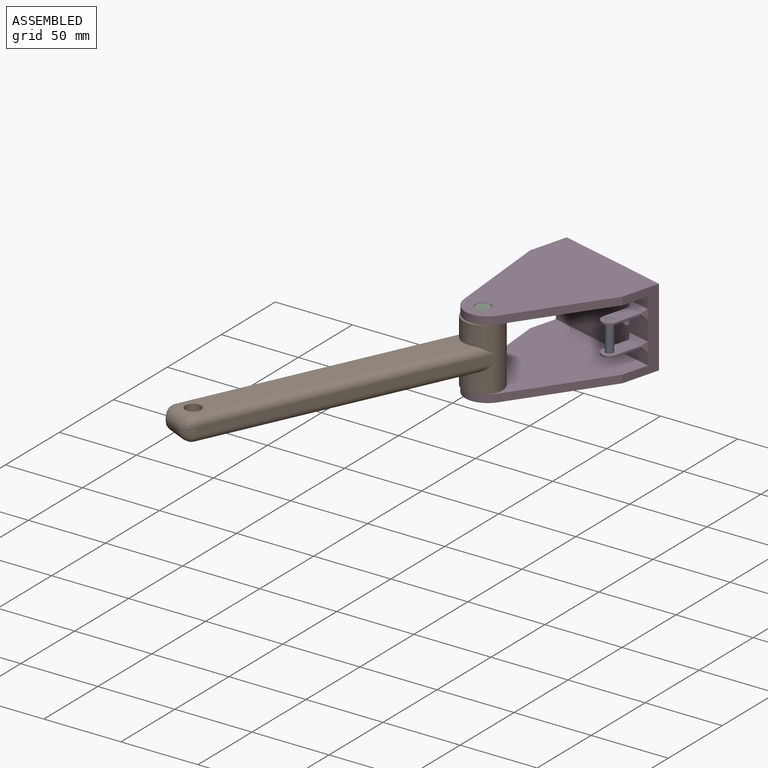
[diagram: assembled view]
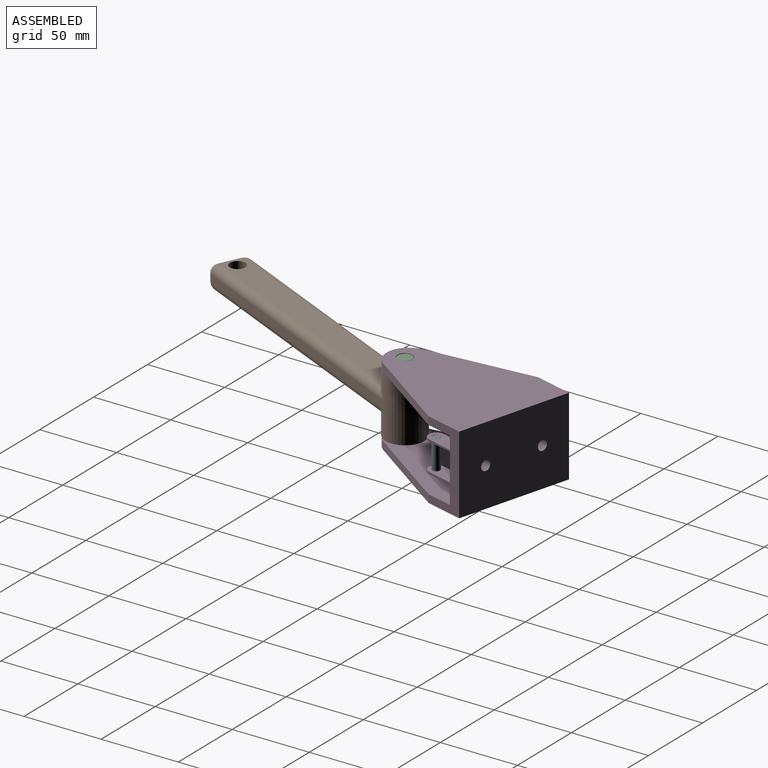
[diagram: assembled view, second angle]
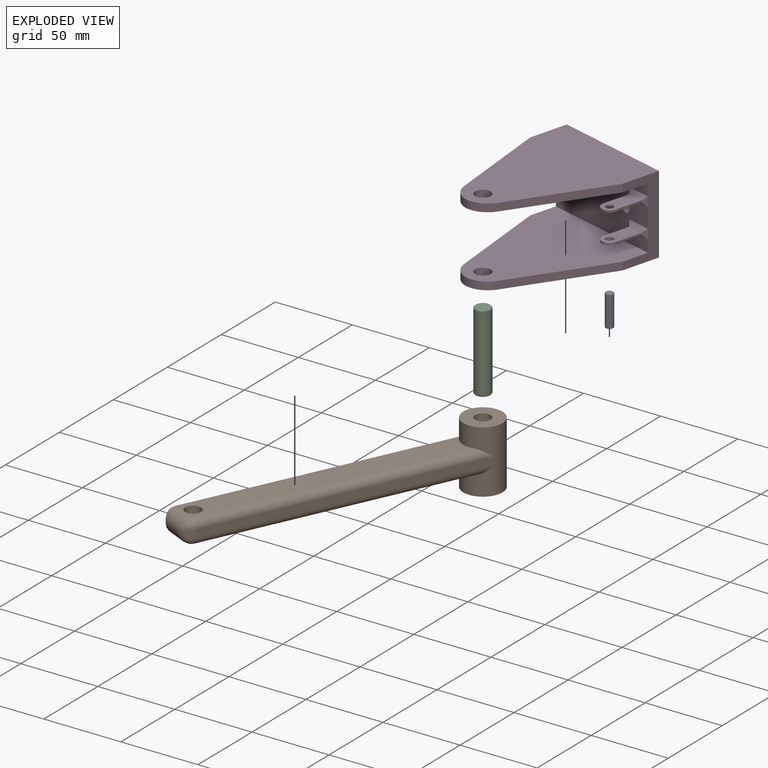
[diagram: exploded view]
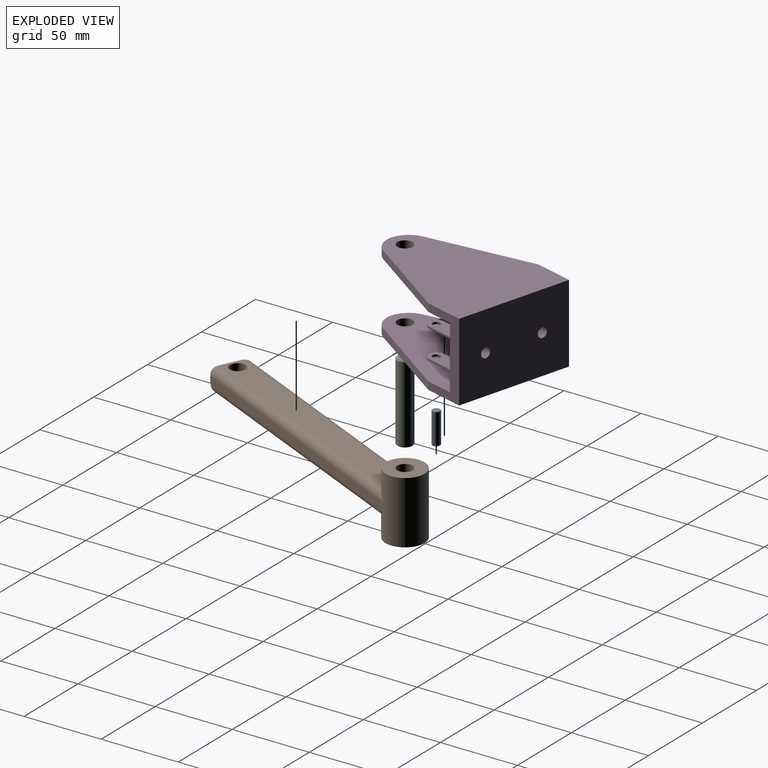
[diagram: exploded view, second angle]
ASSEMBLY  parts=4 mates=3
PART A: 5 faces, bbox 5.1x20.3x5.1 mm
  f0: cylinder r=2.54mm len=19.81mm, axis (0,1,0), area 316.2mm2, adj f3,f4
  f1: plane 4.57x4.57mm, normal (0,-1,0), area 16.4mm2, adj f4
  f2: plane 4.57x4.57mm, normal (0,1,0), area 16.4mm2, adj f3
  f3: cone r=2.54mm half-angle=45deg, axis (0,-1,0), area 5.4mm2, adj f0,f2
  f4: cone r=2.29mm half-angle=45deg, axis (0,1,0), area 5.4mm2, adj f0,f1
PART B: 20 faces, bbox 40.6x25.4x203.2 mm
  f0: plane 182.88x5.08mm, normal (0,-1,0), area 929mm2, adj f5,f9,f10,f13
  f1: plane 25.4x25.4mm, normal (1,0,0), area 425.6mm2, adj f4,f5
  f2: plane 25.4x25.4mm, normal (-1,0,0), area 425.6mm2, adj f4,f5
  f3: plane 182.88x5.08mm, normal (0,1,0), area 929mm2, adj f5,f8,f11,f16
  f4: cylinder r=5.08mm len=40.64mm, axis (1,0,0), area 1297.2mm2, adj f1,f2
  f5: cylinder r=12.7mm len=40.64mm, axis (-1,0,0), area 2726.1mm2, adj f0,f1,f2,f3,f6,f7,f8,f9
  f6: plane 172.72x15.24mm, normal (-1,0,0), area 2524.8mm2, adj f5,f10,f11,f12,f18
  f7: plane 172.72x15.24mm, normal (1,0,0), area 2524.8mm2, adj f5,f8,f9,f12,f18
  f8: cylinder r=5.08mm len=182.88mm, axis (0,0,-1), area 1414.1mm2, adj f3,f5,f7,f19
  f9: cylinder r=5.08mm len=182.88mm, axis (0,0,1), area 1414.1mm2, adj f0,f5,f7,f17
  f10: cylinder r=5.08mm len=182.88mm, axis (0,0,-1), area 1414.1mm2, adj f0,f5,f6,f14
  f11: cylinder r=5.08mm len=182.88mm, axis (0,0,1), area 1414.1mm2, adj f3,f5,f6,f15
  f12: cylinder r=5.08mm len=15.24mm, axis (1,0,0), area 486.4mm2, adj f6,f7
  f13: cylinder r=7.62mm len=7.62mm, axis (1,0,0), area 38.7mm2, adj f0,f14,f17
  f14: bspline ~8.04x7.62mm, area 62.9mm2, adj f10,f13,f18
  f15: bspline ~8.04x7.62mm, area 62.9mm2, adj f11,f16,f18
  f16: cylinder r=7.62mm len=7.62mm, axis (-1,0,0), area 38.7mm2, adj f3,f15,f19
  f17: bspline ~9.26x7.62mm, area 62.9mm2, adj f9,f13,f18
  f18: cylinder r=7.62mm len=15.24mm, axis (0,-1,0), area 320.6mm2, adj f6,f7,f14,f15,f17,f19
  f19: bspline ~8.04x7.62mm, area 62.9mm2, adj f8,f16,f18
PART C: 5 faces, bbox 10.2x50.8x10.2 mm
  f0: cylinder r=5.08mm len=49.78mm, axis (0,1,0), area 1589mm2, adj f3,f4
  f1: plane 9.14x9.14mm, normal (0,-1,0), area 65.7mm2, adj f4
  f2: plane 9.14x9.14mm, normal (0,1,0), area 65.7mm2, adj f3
  f3: cone r=5.08mm half-angle=45deg, axis (0,-1,0), area 21.8mm2, adj f0,f2
  f4: cone r=4.57mm half-angle=45deg, axis (0,1,0), area 21.8mm2, adj f0,f1
PART D: 40 faces, bbox 76.2x101.6x50.8 mm
  f0: plane 17.78x1.27mm, normal (1,0,0), area 22.6mm2, adj f25,f27,f29,f30
  f1: plane 17.78x1.27mm, normal (-1,0,0), area 22.6mm2, adj f23,f26,f28,f37
  f2: plane 101.59x76.2mm, normal (0,0,1), area 5490.6mm2, adj f4,f7,f8,f12,f13,f14,f15,f19
  f3: plane 101.59x76.2mm, normal (0,0,-1), area 5490.6mm2, adj f4,f7,f8,f10,f11,f16,f17,f18
  f4: plane 50.8x25.4mm, normal (1,0,0), area 567.7mm2, adj f2,f3,f5,f6,f8,f9,f11,f13
  f5: plane 93.97x76.2mm, normal (0,0,-1), area 4909.9mm2, adj f4,f7,f9,f12,f13,f14,f15,f19
  f6: plane 93.97x76.2mm, normal (0,0,1), area 4909.9mm2, adj f4,f7,f9,f10,f11,f16,f17,f18
  f7: plane 50.8x25.4mm, normal (-1,0,0), area 567.7mm2, adj f2,f3,f5,f6,f8,f9,f10,f12
  f8: plane 76.2x50.8mm, normal (0,1,0), area 3807.6mm2, adj f2,f3,f4,f7,f20,f21
  f9: plane 76.2x40.64mm, normal (0,-1,0), area 2839.9mm2, adj f4,f5,f6,f7,f20,f21,f31,f32
  f10: plane 66.21x24.28mm, normal (-0.94,-0.34,0), area 358.2mm2, adj f3,f6,f7,f17
  f11: plane 66.21x24.28mm, normal (0.94,-0.34,0), area 358.2mm2, adj f3,f4,f6,f16
  f12: plane 66.21x24.28mm, normal (-0.94,-0.34,0), area 358.2mm2, adj f2,f5,f7,f14
  f13: plane 66.21x24.28mm, normal (0.94,-0.34,0), area 358.2mm2, adj f2,f4,f5,f15
  f14: cylinder r=15.24mm len=13.82mm, axis (0,0,-1), area 91.9mm2, adj f2,f5,f12,f15
  f15: cylinder r=15.24mm len=13.82mm, axis (0,0,1), area 91.9mm2, adj f2,f5,f13,f14
  f16: cylinder r=15.24mm len=13.82mm, axis (0,0,1), area 91.9mm2, adj f3,f6,f11,f17
  f17: cylinder r=15.24mm len=13.82mm, axis (0,0,-1), area 91.9mm2, adj f3,f6,f10,f16
  f18: cylinder r=5.08mm len=10.16mm, axis (0,0,1), area 162.1mm2, adj f3,f6
  f19: cylinder r=5.08mm len=10.16mm, axis (0,0,1), area 162.1mm2, adj f2,f5
  f20: cylinder r=3.17mm len=7.62mm, axis (0,1,0), area 152mm2, adj f8,f9
  f21: cylinder r=3.17mm len=7.62mm, axis (0,1,0), area 152mm2, adj f8,f9
  f22: plane 17.78x1.27mm, normal (1,0,0), area 22.6mm2, adj f23,f26,f28,f34
  f23: plane 22.86x10.16mm, normal (0,0,1), area 200.9mm2, adj f1,f22,f28,f36,f39
  f24: plane 17.78x1.27mm, normal (-1,0,0), area 22.6mm2, adj f25,f27,f29,f33
  f25: plane 22.86x10.16mm, normal (0,0,-1), area 200.9mm2, adj f0,f24,f29,f31,f38
  f26: plane 22.86x10.16mm, normal (0,0,-1), area 200.9mm2, adj f1,f22,f28,f35,f39
  f27: plane 22.86x10.16mm, normal (0,0,1), area 200.9mm2, adj f0,f24,f29,f32,f38
  f28: cylinder r=5.08mm len=10.16mm, axis (0,0,-1), area 20.3mm2, adj f1,f22,f23,f26
  f29: cylinder r=5.08mm len=10.16mm, axis (0,0,1), area 20.3mm2, adj f0,f24,f25,f27
  f30: plane 6.35x2.54mm, normal (0.71,-0.71,0), area 13.7mm2, adj f0,f4,f31,f32
  f31: plane 15.24x2.54mm, normal (0,-0.71,-0.71), area 45.6mm2, adj f9,f25,f30,f33
  f32: plane 15.24x2.54mm, normal (0,-0.71,0.71), area 45.6mm2, adj f9,f27,f30,f33
  f33: plane 6.35x2.54mm, normal (-0.71,-0.71,0), area 13.7mm2, adj f9,f24,f31,f32
  f34: plane 6.35x2.54mm, normal (0.71,-0.71,0), area 13.7mm2, adj f4,f22,f35,f36
  f35: plane 15.24x2.54mm, normal (0,-0.71,-0.71), area 45.6mm2, adj f9,f26,f34,f37
  f36: plane 15.24x2.54mm, normal (0,-0.71,0.71), area 45.6mm2, adj f9,f23,f34,f37
  f37: plane 6.35x2.54mm, normal (-0.71,-0.71,0), area 13.7mm2, adj f1,f9,f35,f36
  f38: cylinder r=2.54mm len=5.08mm, axis (0,0,1), area 20.3mm2, adj f25,f27
  f39: cylinder r=2.54mm len=5.08mm, axis (0,0,1), area 20.3mm2, adj f23,f26
PLACE A rot(axis=(-0.98,0.13,-0.13),91deg) t=(675.29,45.1,53.29)mm
PLACE B rot(axis=(0.64,0.41,-0.64),135.3deg) t=(646.62,-0.97,83.77)mm
PLACE C rot(axis=(0.98,-0.13,-0.13),91deg) t=(629.75,-7.11,88.85)mm
PLACE D rot(axis=(0,0,-1),15deg) t=(616.28,89.84,38.05)mm
MATE fastened C.f0 <-> D.f18  axis (0,0,-1) through (629.75,-7.11,38.05)mm
MATE revolute B.f4 <-> C.f0  axis (0,0,1) through (629.75,-7.11,63.45)mm
MATE fastened A.f0 <-> D.f28  axis (0,0,1) through (675.29,45.1,73.61)mm
